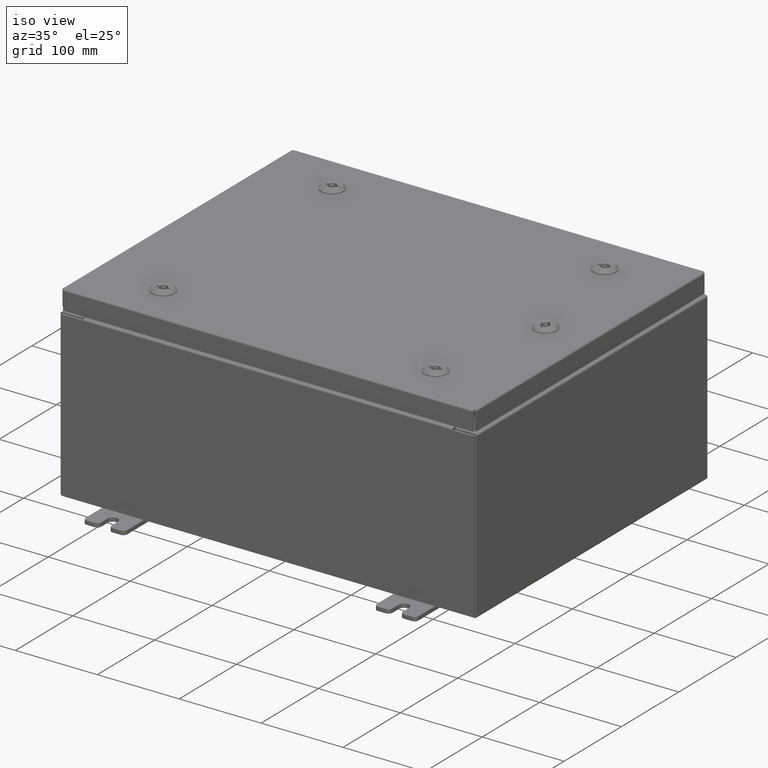
[diagram: clean part render]
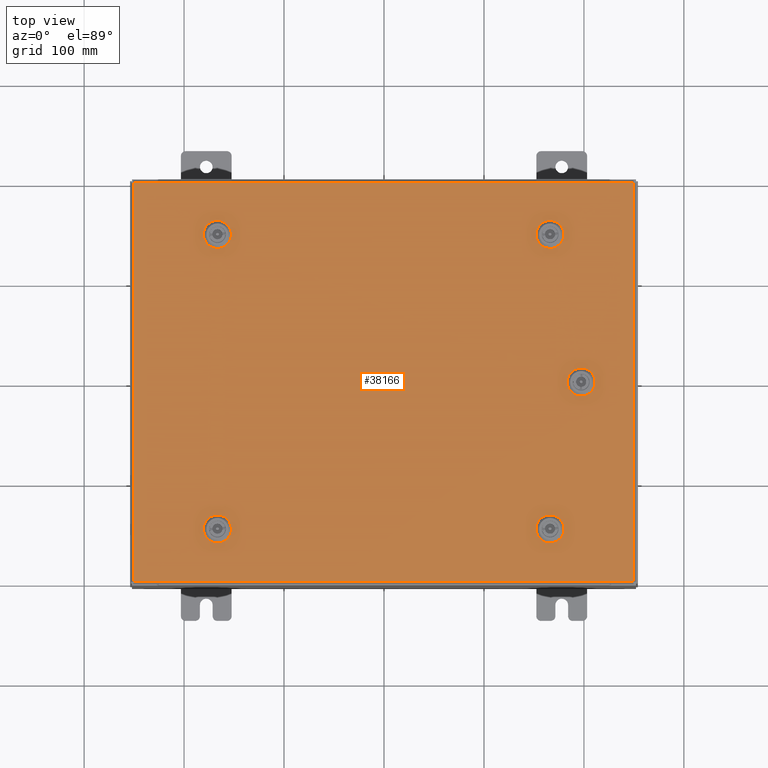
[diagram: tour spotlight — one face highlighted and labeled with its STEP entity id]
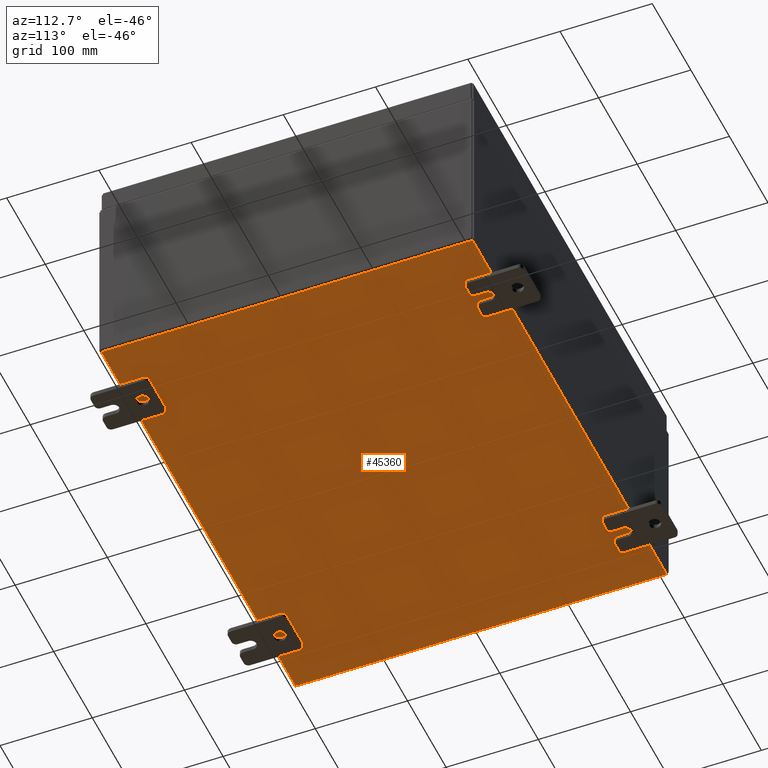
[diagram: tour spotlight — one face highlighted and labeled with its STEP entity id]
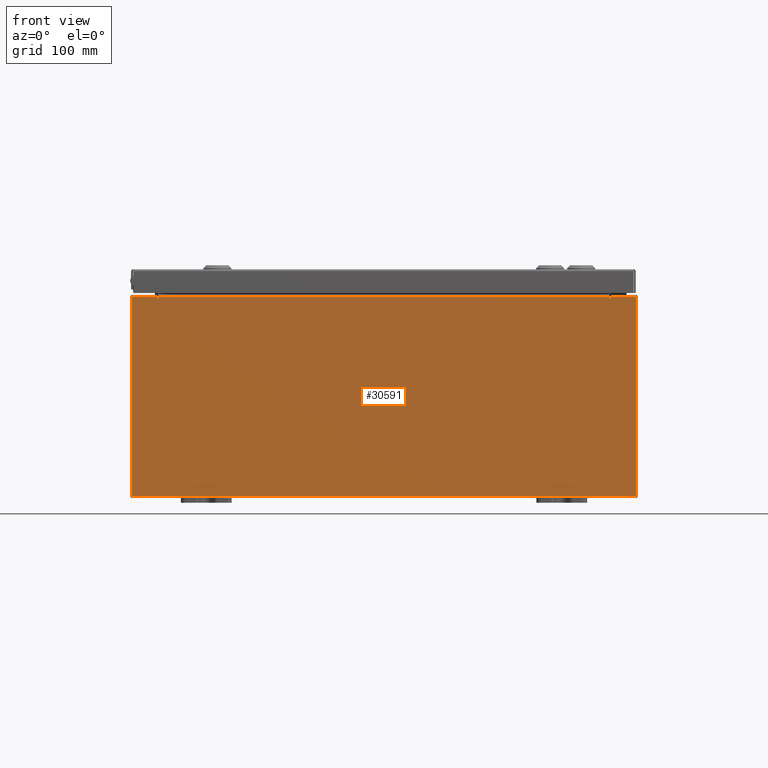
[diagram: tour spotlight — one face highlighted and labeled with its STEP entity id]
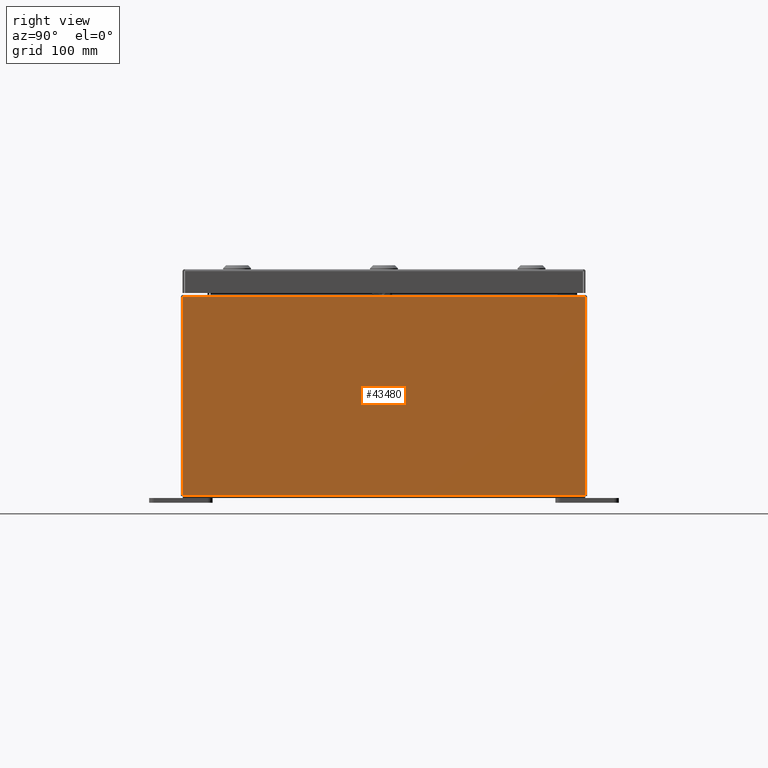
[diagram: tour spotlight — one face highlighted and labeled with its STEP entity id]
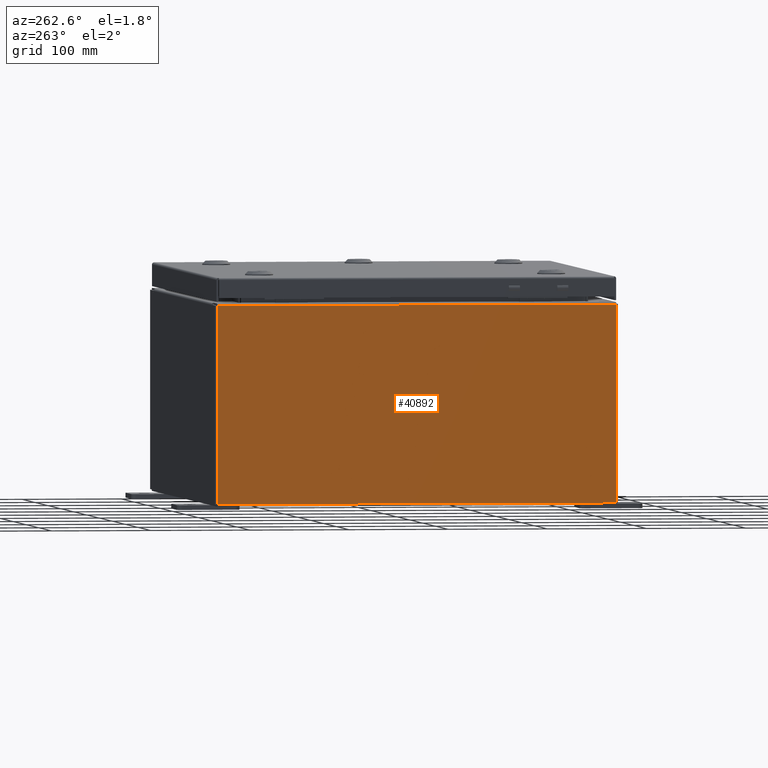
[diagram: tour spotlight — one face highlighted and labeled with its STEP entity id]
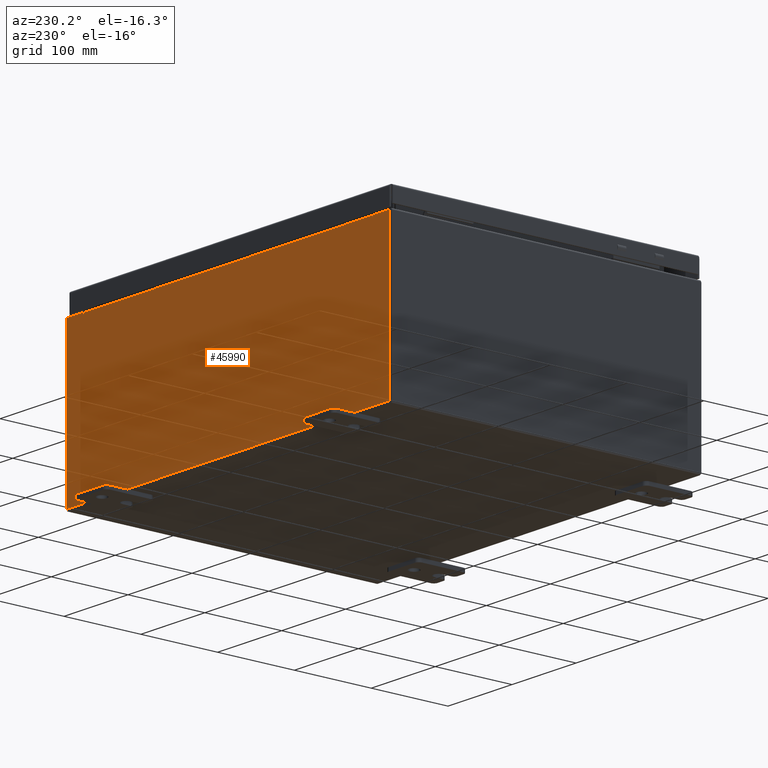
[diagram: tour spotlight — one face highlighted and labeled with its STEP entity id]
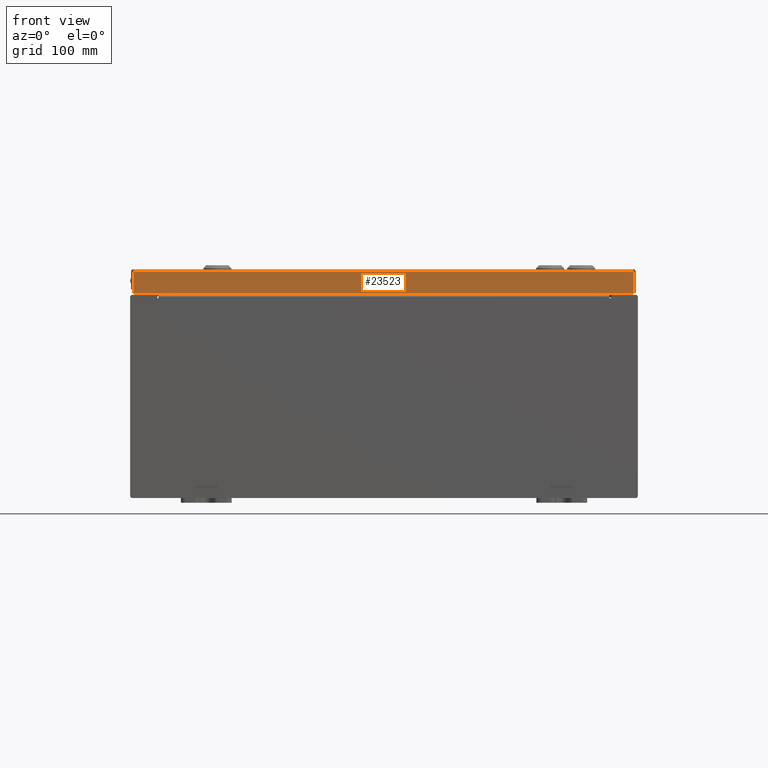
[diagram: tour spotlight — one face highlighted and labeled with its STEP entity id]
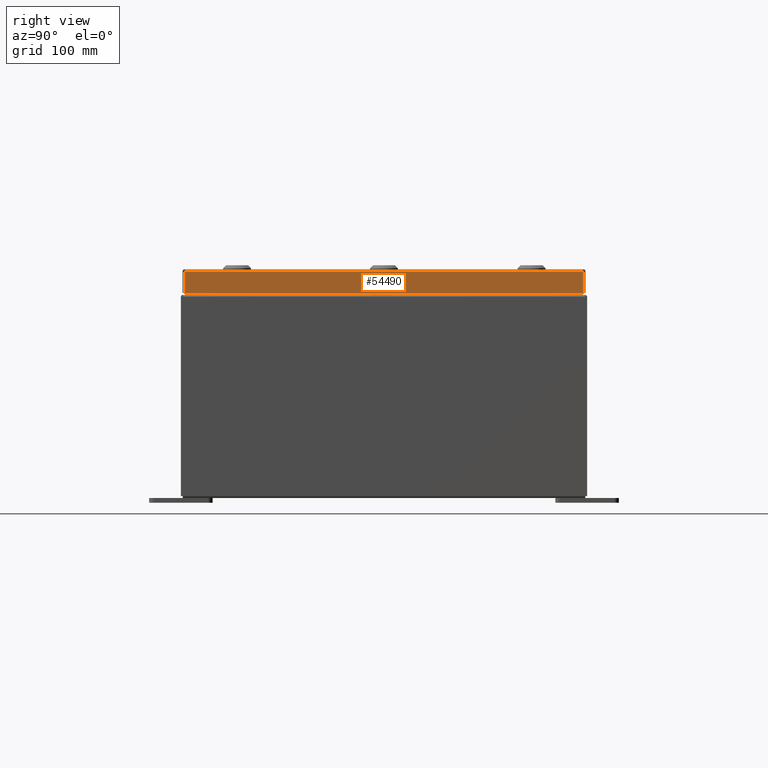
[diagram: tour spotlight — one face highlighted and labeled with its STEP entity id]
A machine part: a face-by-face anatomy tour. The part has 4592 B-rep faces; the first image is the clean iso view, then the 8 largest visible faces are spotlighted one at a time (largest first), each with its STEP entity span.

Face 1 — top view, entity #38166. In plain terms, the highlighted planar face has unit normal (0, 0, -1).
Definition (entity closure, byte-faithful):
#41 = ORIENTED_EDGE ( 'NONE', *, *, #56966, .F. ) ;
#214 = VERTEX_POINT ( 'NONE', #59776 ) ;
#232 = ORIENTED_EDGE ( 'NONE', *, *, #9797, .F. ) ;
#301 = EDGE_CURVE ( 'NONE', #19980, #27138, #12074, .T. ) ;
#329 = ORIENTED_EDGE ( 'NONE', *, *, #59008, .F. ) ;
#487 = CARTESIAN_POINT ( 'NONE',  ( 6.761952375267864700, 5.392799999999995800, -2.731847993664263300E-014 ) ) ;
#989 = ORIENTED_EDGE ( 'NONE', *, *, #22856, .F. ) ;
#1016 = DIRECTION ( 'NONE',  ( 0.0000000000000000000, 1.000000000000000000, 6.982962677686269100E-015 ) ) ;
#1695 = CARTESIAN_POINT ( 'NONE',  ( -6.363047624732097100, -5.392799999999999400, -4.698778549102532700E-014 ) ) ;
#1862 = CARTESIAN_POINT ( 'NONE',  ( 7.787800000000009600, 1.529834876451987200E-014, 0.0000000000000000000 ) ) ;
#1905 = DIRECTION ( 'NONE',  ( 0.0000000000000000000, 0.0000000000000000000, 1.000000000000000000 ) ) ;
#2277 = EDGE_CURVE ( 'NONE', #59607, #62866, #50705, .T. ) ;
#2642 = LINE ( 'NONE', #7562, #15547 ) ;
#3067 = CIRCLE ( 'NONE', #47859, 0.4424999999999983400 ) ;
#3143 = LINE ( 'NONE', #32127, #40307 ) ;
#3180 = AXIS2_PLACEMENT_3D ( 'NONE', #35596, #6526, #40455 ) ;
#3420 = CIRCLE ( 'NONE', #39979, 0.4424999999999972800 ) ;
#3434 = CARTESIAN_POINT ( 'NONE',  ( -6.761952375267867400, -5.392799999999998500, -4.698778549102532700E-014 ) ) ;
#3988 = DIRECTION ( 'NONE',  ( -1.000000000000000000, 0.0000000000000000000, 6.982962677686261200E-015 ) ) ;
#4093 = EDGE_CURVE ( 'NONE', #8028, #19543, #42239, .T. ) ;
#4734 = EDGE_LOOP ( 'NONE', ( #54063, #232, #4747, #329, #49642 ) ) ;
#4747 = ORIENTED_EDGE ( 'NONE', *, *, #26307, .F. ) ;
#4865 = CARTESIAN_POINT ( 'NONE',  ( 6.562499999999981300, 5.787799999999993600, -2.622574073917692700E-014 ) ) ;
#5457 = CARTESIAN_POINT ( 'NONE',  ( -6.363047624732097100, -5.392799999999999400, -4.698778549102532700E-014 ) ) ;
#5470 = ORIENTED_EDGE ( 'NONE', *, *, #30597, .F. ) ;
#5480 = CARTESIAN_POINT ( 'NONE',  ( 7.004999999999979500, -5.787799999999993600, -1.985756216190365100E-014 ) ) ;
#5604 = VERTEX_POINT ( 'NONE', #16082 ) ;
#5615 = CARTESIAN_POINT ( 'NONE',  ( 6.562499999999981300, -5.787799999999993600, -2.294752314677981200E-014 ) ) ;
#6109 = EDGE_LOOP ( 'NONE', ( #60690, #33008, #26326, #39586 ) ) ;
#6456 = FACE_BOUND ( 'NONE', #14028, .T. ) ;
#6526 = DIRECTION ( 'NONE',  ( -0.0000000000000000000, -6.982962677686266700E-015, 1.000000000000000000 ) ) ;
#6732 = DIRECTION ( 'NONE',  ( 1.000000000000000000, 0.0000000000000000000, 0.0000000000000000000 ) ) ;
#6959 = AXIS2_PLACEMENT_3D ( 'NONE', #25152, #59120, #30053 ) ;
#7226 = AXIS2_PLACEMENT_3D ( 'NONE', #1862, #35796, #6732 ) ;
#7562 = CARTESIAN_POINT ( 'NONE',  ( 6.363047624732090000, 6.182799999999985200, -2.513300154171122100E-014 ) ) ;
#8003 = FACE_BOUND ( 'NONE', #4734, .T. ) ;
#8028 = VERTEX_POINT ( 'NONE', #3434 ) ;
#8427 = VECTOR ( 'NONE', #49159, 39.37007874015748100 ) ;
#8951 = LINE ( 'NONE', #47119, #59080 ) ;
#9155 = CARTESIAN_POINT ( 'NONE',  ( 6.562499999999981300, 5.787799999999993600, -2.622574073917692700E-014 ) ) ;
#9273 = AXIS2_PLACEMENT_3D ( 'NONE', #17933, #20695, #20280 ) ;
#9718 = DIRECTION ( 'NONE',  ( -1.000000000000000000, 0.0000000000000000000, 6.982962677686261200E-015 ) ) ;
#9797 = EDGE_CURVE ( 'NONE', #44037, #214, #20135, .T. ) ;
#10471 = DIRECTION ( 'NONE',  ( 1.000000000000000000, 0.0000000000000000000, 6.982962677686261200E-015 ) ) ;
#10481 = CARTESIAN_POINT ( 'NONE',  ( 6.562499999999981300, -5.787799999999993600, -2.294752314677981200E-014 ) ) ;
#10593 = LINE ( 'NONE', #39728, #46310 ) ;
#10681 = AXIS2_PLACEMENT_3D ( 'NONE', #14393, #24370, #58339 ) ;
#11051 = CARTESIAN_POINT ( 'NONE',  ( -6.363047624732097100, 5.392799999999997600, 0.0000000000000000000 ) ) ;
#12049 = EDGE_CURVE ( 'NONE', #5604, #42252, #46591, .T. ) ;
#12063 = CARTESIAN_POINT ( 'NONE',  ( 6.761952375267863000, 6.182799999999990500, 0.0000000000000000000 ) ) ;
#12074 = CIRCLE ( 'NONE', #9273, 0.4424999999999972800 ) ;
#12478 = LINE ( 'NONE', #19941, #36784 ) ;
#12613 = ORIENTED_EDGE ( 'NONE', *, *, #27797, .F. ) ;
#13495 = VECTOR ( 'NONE', #25335, 39.37007874015748100 ) ;
#13633 = VECTOR ( 'NONE', #22834, 39.37007874015748100 ) ;
#14028 = EDGE_LOOP ( 'NONE', ( #42042, #12613, #51746, #16933, #989 ) ) ;
#14027 = VERTEX_POINT ( 'NONE', #1695 ) ;
#14037 = DIRECTION ( 'NONE',  ( -1.000000000000000000, 0.0000000000000000000, 6.982962677686260400E-015 ) ) ;
#14111 = EDGE_CURVE ( 'NONE', #214, #34263, #20627, .T. ) ;
#14393 = CARTESIAN_POINT ( 'NONE',  ( 0.0000000000000000000, 0.0000000000000000000, 0.0000000000000000000 ) ) ;
#15102 = EDGE_CURVE ( 'NONE', #42252, #23728, #33509, .T. ) ;
#15392 = DIRECTION ( 'NONE',  ( 1.000000000000000000, 0.0000000000000000000, 6.982962677686261200E-015 ) ) ;
#15547 = VECTOR ( 'NONE', #41471, 39.37007874015748100 ) ;
#16082 = CARTESIAN_POINT ( 'NONE',  ( 9.849800000000001900, 7.849800000000001000, -1.092739197465705300E-015 ) ) ;
#16100 = ORIENTED_EDGE ( 'NONE', *, *, #15102, .T. ) ;
#16381 = CARTESIAN_POINT ( 'NONE',  ( 8.182800000000003800, 0.1994523752679009100, 0.0000000000000000000 ) ) ;
#16892 = VERTEX_POINT ( 'NONE', #31122 ) ;
#16933 = ORIENTED_EDGE ( 'NONE', *, *, #2277, .F. ) ;
#17933 = CARTESIAN_POINT ( 'NONE',  ( -6.562499999999982200, 5.787799999999993600, 0.0000000000000000000 ) ) ;
#18377 = AXIS2_PLACEMENT_3D ( 'NONE', #53631, #24540, #58507 ) ;
#19034 = EDGE_CURVE ( 'NONE', #23728, #20282, #8951, .T. ) ;
#19108 = VECTOR ( 'NONE', #55384, 39.37007874015748100 ) ;
#19235 = VECTOR ( 'NONE', #50840, 39.37007874015748100 ) ;
#19349 = FACE_BOUND ( 'NONE', #6109, .T. ) ;
#19543 = VERTEX_POINT ( 'NONE', #23396 ) ;
#19869 = EDGE_CURVE ( 'NONE', #23520, #53254, #24819, .T. ) ;
#19941 = CARTESIAN_POINT ( 'NONE',  ( 7.392800000000016200, 0.1994523752679053800, 0.0000000000000000000 ) ) ;
#19980 = VERTEX_POINT ( 'NONE', #56264 ) ;
#20027 = DIRECTION ( 'NONE',  ( 0.0000000000000000000, 0.0000000000000000000, 1.000000000000000000 ) ) ;
#20052 = VERTEX_POINT ( 'NONE', #51786 ) ;
#20135 = CIRCLE ( 'NONE', #61639, 0.4424999999999983400 ) ;
#20280 = DIRECTION ( 'NONE',  ( 1.000000000000000000, 0.0000000000000000000, 0.0000000000000000000 ) ) ;
#20282 = VERTEX_POINT ( 'NONE', #38162 ) ;
#20627 = LINE ( 'NONE', #26091, #19108 ) ;
#20695 = DIRECTION ( 'NONE',  ( 0.0000000000000000000, 0.0000000000000000000, 1.000000000000000000 ) ) ;
#20857 = CARTESIAN_POINT ( 'NONE',  ( -6.761952375267863900, 6.182799999999990500, 0.0000000000000000000 ) ) ;
#21290 = CARTESIAN_POINT ( 'NONE',  ( 6.761952375267863000, -6.182799999999990500, -2.513300154171122100E-014 ) ) ;
#21880 = EDGE_CURVE ( 'NONE', #57825, #28891, #2642, .T. ) ;
#21966 = CIRCLE ( 'NONE', #44480, 0.4424999999999983400 ) ;
#22834 = DIRECTION ( 'NONE',  ( -1.000000000000000000, 1.369674334534793800E-014, 0.0000000000000000000 ) ) ;
#22856 = EDGE_CURVE ( 'NONE', #28891, #59607, #25329, .T. ) ;
#22998 = CARTESIAN_POINT ( 'NONE',  ( -6.363047624732090800, -6.182799999999987000, -5.245148147835385400E-014 ) ) ;
#23008 = ORIENTED_EDGE ( 'NONE', *, *, #45121, .F. ) ;
#23168 = CARTESIAN_POINT ( 'NONE',  ( -6.761952375267867400, 5.392799999999995800, 0.0000000000000000000 ) ) ;
#23202 = EDGE_CURVE ( 'NONE', #34263, #20052, #54950, .T. ) ;
#23396 = CARTESIAN_POINT ( 'NONE',  ( -6.761952375267863900, -6.182799999999993200, 0.0000000000000000000 ) ) ;
#23520 = VERTEX_POINT ( 'NONE', #16381 ) ;
#23728 = VERTEX_POINT ( 'NONE', #51515 ) ;
#23887 = VERTEX_POINT ( 'NONE', #47456 ) ;
#24370 = DIRECTION ( 'NONE',  ( 0.0000000000000000000, 0.0000000000000000000, -1.000000000000000000 ) ) ;
#24409 = VERTEX_POINT ( 'NONE', #22998 ) ;
#24540 = DIRECTION ( 'NONE',  ( 0.0000000000000000000, 0.0000000000000000000, 1.000000000000000000 ) ) ;
#24787 = ORIENTED_EDGE ( 'NONE', *, *, #59449, .F. ) ;
#24819 = CIRCLE ( 'NONE', #7226, 0.4424999999999972800 ) ;
#25091 = ORIENTED_EDGE ( 'NONE', *, *, #12049, .T. ) ;
#25152 = CARTESIAN_POINT ( 'NONE',  ( -6.562499999999982200, -5.787799999999995400, -4.917326388595673900E-014 ) ) ;
#25329 = CIRCLE ( 'NONE', #47228, 0.4424999999999972800 ) ;
#25335 = DIRECTION ( 'NONE',  ( 1.000000000000000000, -2.739348669069625000E-015, -6.982962677686286400E-015 ) ) ;
#25358 = EDGE_LOOP ( 'NONE', ( #29591, #40314, #25091, #16100 ) ) ;
#26091 = CARTESIAN_POINT ( 'NONE',  ( 6.363047624732097100, -5.392799999999997600, -2.185478394931410600E-014 ) ) ;
#26307 = EDGE_CURVE ( 'NONE', #29758, #44037, #37277, .T. ) ;
#26326 = ORIENTED_EDGE ( 'NONE', *, *, #51487, .F. ) ;
#27138 = VERTEX_POINT ( 'NONE', #30438 ) ;
#27166 = CARTESIAN_POINT ( 'NONE',  ( 6.562499999999981300, -5.787799999999993600, -2.294752314677981200E-014 ) ) ;
#27797 = EDGE_CURVE ( 'NONE', #53241, #57825, #21966, .T. ) ;
#27806 = DIRECTION ( 'NONE',  ( 1.000000000000000000, -0.0000000000000000000, -0.0000000000000000000 ) ) ;
#28238 = ORIENTED_EDGE ( 'NONE', *, *, #44881, .F. ) ;
#28849 = ORIENTED_EDGE ( 'NONE', *, *, #43816, .F. ) ;
#28891 = VERTEX_POINT ( 'NONE', #60740 ) ;
#29591 = ORIENTED_EDGE ( 'NONE', *, *, #19034, .T. ) ;
#29758 = VERTEX_POINT ( 'NONE', #21290 ) ;
#29777 = ORIENTED_EDGE ( 'NONE', *, *, #301, .F. ) ;
#30053 = DIRECTION ( 'NONE',  ( 0.0000000000000000000, 1.000000000000000000, 6.982962677686270700E-015 ) ) ;
#30106 = DIRECTION ( 'NONE',  ( -0.0000000000000000000, -6.982962677686266700E-015, 1.000000000000000000 ) ) ;
#30438 = CARTESIAN_POINT ( 'NONE',  ( -6.119999999999985000, 5.787799999999993600, 0.0000000000000000000 ) ) ;
#30597 = EDGE_CURVE ( 'NONE', #60788, #19980, #41649, .T. ) ;
#30978 = CARTESIAN_POINT ( 'NONE',  ( 7.787800000000009600, 1.529834876451987200E-014, 0.0000000000000000000 ) ) ;
#31122 = CARTESIAN_POINT ( 'NONE',  ( 8.182800000000009200, -0.1994523752678676000, 0.0000000000000000000 ) ) ;
#31518 = CARTESIAN_POINT ( 'NONE',  ( -9.849799999999996600, 7.849800000000001000, 0.0000000000000000000 ) ) ;
#31844 = CARTESIAN_POINT ( 'NONE',  ( 6.363047624732097100, 5.392799999999997600, -2.513300154171122100E-014 ) ) ;
#32050 = DIRECTION ( 'NONE',  ( 1.000000000000000000, 0.0000000000000000000, 6.982962677686260400E-015 ) ) ;
#32127 = CARTESIAN_POINT ( 'NONE',  ( 9.849800000000001900, -7.849799999999999200, 0.0000000000000000000 ) ) ;
#32299 = FACE_BOUND ( 'NONE', #55607, .T. ) ;
#32408 = CARTESIAN_POINT ( 'NONE',  ( 6.363047624732097100, -5.392799999999997600, -2.185478394931410600E-014 ) ) ;
#32453 = CIRCLE ( 'NONE', #42985, 0.4424999999999983400 ) ;
#32730 = LINE ( 'NONE', #5457, #8427 ) ;
#32933 = EDGE_CURVE ( 'NONE', #52476, #16892, #32453, .T. ) ;
#33008 = ORIENTED_EDGE ( 'NONE', *, *, #32933, .F. ) ;
#33060 = DIRECTION ( 'NONE',  ( 6.982962677686266700E-015, -0.0000000000000000000, 1.000000000000000000 ) ) ;
#33288 = DIRECTION ( 'NONE',  ( -1.000000000000000000, -0.0000000000000000000, -0.0000000000000000000 ) ) ;
#33509 = LINE ( 'NONE', #31518, #57793 ) ;
#34263 = VERTEX_POINT ( 'NONE', #32408 ) ;
#34594 = DIRECTION ( 'NONE',  ( -8.218046007208770500E-015, -1.000000000000000000, 0.0000000000000000000 ) ) ;
#35596 = CARTESIAN_POINT ( 'NONE',  ( -6.562499999999982200, -5.787799999999995400, -4.917326388595673900E-014 ) ) ;
#35639 = CIRCLE ( 'NONE', #18377, 0.4424999999999972800 ) ;
#35796 = DIRECTION ( 'NONE',  ( 0.0000000000000000000, 0.0000000000000000000, 1.000000000000000000 ) ) ;
#35840 = DIRECTION ( 'NONE',  ( 1.000000000000000000, 0.0000000000000000000, 0.0000000000000000000 ) ) ;
#36768 = CARTESIAN_POINT ( 'NONE',  ( 7.392800000000012700, -0.1994523752678671000, 0.0000000000000000000 ) ) ;
#36784 = VECTOR ( 'NONE', #34594, 39.37007874015748100 ) ;
#36987 = DIRECTION ( 'NONE',  ( 0.0000000000000000000, 1.000000000000000000, 0.0000000000000000000 ) ) ;
#37277 = CIRCLE ( 'NONE', #46087, 0.4424999999999983400 ) ;
#37461 = DIRECTION ( 'NONE',  ( -8.218046007208852600E-015, 1.000000000000000000, -0.0000000000000000000 ) ) ;
#38162 = CARTESIAN_POINT ( 'NONE',  ( 9.849800000000001900, -7.849799999999999200, 0.0000000000000000000 ) ) ;
#38166 = ADVANCED_FACE ( 'NONE', ( #19349, #8003, #32299, #6456, #56592, #43613 ), #43653, .F. ) ;
#38357 = VECTOR ( 'NONE', #37461, 39.37007874015748100 ) ;
#38446 = EDGE_CURVE ( 'NONE', #24409, #23887, #3420, .T. ) ;
#38479 = CARTESIAN_POINT ( 'NONE',  ( 7.004999999999979500, 5.787799999999993600, -2.931570172405308400E-014 ) ) ;
#38783 = DIRECTION ( 'NONE',  ( 6.982962677686266700E-015, -0.0000000000000000000, 1.000000000000000000 ) ) ;
#39133 = ORIENTED_EDGE ( 'NONE', *, *, #4093, .F. ) ;
#39547 = DIRECTION ( 'NONE',  ( -6.982962677686266700E-015, -6.982962677686266700E-015, 1.000000000000000000 ) ) ;
#39586 = ORIENTED_EDGE ( 'NONE', *, *, #19869, .F. ) ;
#39728 = CARTESIAN_POINT ( 'NONE',  ( 6.363047624732090000, -6.182799999999985200, -2.731847993664263300E-014 ) ) ;
#39979 = AXIS2_PLACEMENT_3D ( 'NONE', #59177, #30106, #1016 ) ;
#40307 = VECTOR ( 'NONE', #36987, 39.37007874015748100 ) ;
#40314 = ORIENTED_EDGE ( 'NONE', *, *, #57271, .T. ) ;
#40455 = DIRECTION ( 'NONE',  ( 0.0000000000000000000, 1.000000000000000000, 6.982962677686269100E-015 ) ) ;
#41084 = CIRCLE ( 'NONE', #55623, 0.4424999999999983400 ) ;
#41471 = DIRECTION ( 'NONE',  ( -1.000000000000000000, -1.369674334534793800E-014, 6.982962677686269100E-015 ) ) ;
#41649 = LINE ( 'NONE', #11051, #43161 ) ;
#42042 = ORIENTED_EDGE ( 'NONE', *, *, #21880, .F. ) ;
#42239 = CIRCLE ( 'NONE', #6959, 0.4424999999999983400 ) ;
#42252 = VERTEX_POINT ( 'NONE', #47885 ) ;
#42677 = ORIENTED_EDGE ( 'NONE', *, *, #38446, .F. ) ;
#42985 = AXIS2_PLACEMENT_3D ( 'NONE', #30978, #1905, #35840 ) ;
#43088 = DIRECTION ( 'NONE',  ( 6.982962677686266700E-015, -0.0000000000000000000, 1.000000000000000000 ) ) ;
#43161 = VECTOR ( 'NONE', #45016, 39.37007874015748100 ) ;
#43613 = FACE_OUTER_BOUND ( 'NONE', #25358, .T. ) ;
#43653 = PLANE ( 'NONE',  #10681 ) ;
#43816 = EDGE_CURVE ( 'NONE', #14027, #8028, #32730, .T. ) ;
#44037 = VERTEX_POINT ( 'NONE', #5480 ) ;
#44430 = DIRECTION ( 'NONE',  ( -6.982962677686266700E-015, -6.982962677686266700E-015, 1.000000000000000000 ) ) ;
#44480 = AXIS2_PLACEMENT_3D ( 'NONE', #4865, #38783, #9718 ) ;
#44484 = EDGE_CURVE ( 'NONE', #62866, #53241, #3067, .T. ) ;
#44595 = EDGE_LOOP ( 'NONE', ( #5470, #41, #23008, #24787, #29777 ) ) ;
#44694 = CARTESIAN_POINT ( 'NONE',  ( -6.363047624732090800, 6.182799999999985200, 0.0000000000000000000 ) ) ;
#44881 = EDGE_CURVE ( 'NONE', #23887, #14027, #45533, .T. ) ;
#45016 = DIRECTION ( 'NONE',  ( 1.000000000000000000, 2.739348669069610000E-015, -0.0000000000000000000 ) ) ;
#45062 = LINE ( 'NONE', #55528, #19235 ) ;
#45121 = EDGE_CURVE ( 'NONE', #45483, #52185, #52374, .T. ) ;
#45483 = VERTEX_POINT ( 'NONE', #44694 ) ;
#45533 = CIRCLE ( 'NONE', #3180, 0.4424999999999972800 ) ;
#45945 = DIRECTION ( 'NONE',  ( 0.0000000000000000000, -1.000000000000000000, 0.0000000000000000000 ) ) ;
#46087 = AXIS2_PLACEMENT_3D ( 'NONE', #10481, #44430, #15392 ) ;
#46310 = VECTOR ( 'NONE', #49504, 39.37007874015748100 ) ;
#46591 = LINE ( 'NONE', #62346, #57972 ) ;
#47032 = CARTESIAN_POINT ( 'NONE',  ( 8.182800000000003800, 0.1994523752679009100, 0.0000000000000000000 ) ) ;
#47059 = CARTESIAN_POINT ( 'NONE',  ( -6.363047624732090800, 6.182799999999985200, 0.0000000000000000000 ) ) ;
#47119 = CARTESIAN_POINT ( 'NONE',  ( -9.849799999999996600, -7.849799999999999200, 0.0000000000000000000 ) ) ;
#47228 = AXIS2_PLACEMENT_3D ( 'NONE', #9155, #43088, #14037 ) ;
#47456 = CARTESIAN_POINT ( 'NONE',  ( -6.119999999999985000, -5.787799999999995400, -4.917326388595673900E-014 ) ) ;
#47859 = AXIS2_PLACEMENT_3D ( 'NONE', #62135, #33060, #3988 ) ;
#47885 = CARTESIAN_POINT ( 'NONE',  ( -9.849799999999996600, 7.849800000000001000, 0.0000000000000000000 ) ) ;
#48363 = ORIENTED_EDGE ( 'NONE', *, *, #52861, .F. ) ;
#49098 = CARTESIAN_POINT ( 'NONE',  ( -6.562499999999982200, 5.787799999999993600, 0.0000000000000000000 ) ) ;
#49159 = DIRECTION ( 'NONE',  ( -1.000000000000000000, 2.739348669069610000E-015, 1.946424297521510000E-029 ) ) ;
#49504 = DIRECTION ( 'NONE',  ( 1.000000000000000000, -1.369674334534793800E-014, 6.982962677686171300E-015 ) ) ;
#49642 = ORIENTED_EDGE ( 'NONE', *, *, #23202, .F. ) ;
#50390 = CARTESIAN_POINT ( 'NONE',  ( 6.363047624732097100, 5.392799999999997600, -2.513300154171122100E-014 ) ) ;
#50552 = EDGE_CURVE ( 'NONE', #16892, #23520, #52798, .T. ) ;
#50705 = LINE ( 'NONE', #50390, #13495 ) ;
#50840 = DIRECTION ( 'NONE',  ( 1.000000000000000000, 1.369674334534793800E-014, 9.732121487607470400E-029 ) ) ;
#51487 = EDGE_CURVE ( 'NONE', #53254, #52476, #12478, .T. ) ;
#51515 = CARTESIAN_POINT ( 'NONE',  ( -9.849799999999996600, -7.849799999999999200, 0.0000000000000000000 ) ) ;
#51746 = ORIENTED_EDGE ( 'NONE', *, *, #44484, .F. ) ;
#51786 = CARTESIAN_POINT ( 'NONE',  ( 6.363047624732090000, -6.182799999999985200, -2.731847993664263300E-014 ) ) ;
#52185 = VERTEX_POINT ( 'NONE', #20857 ) ;
#52374 = LINE ( 'NONE', #47059, #13633 ) ;
#52476 = VERTEX_POINT ( 'NONE', #36768 ) ;
#52798 = LINE ( 'NONE', #47032, #38357 ) ;
#52861 = EDGE_CURVE ( 'NONE', #19543, #24409, #45062, .T. ) ;
#52922 = CARTESIAN_POINT ( 'NONE',  ( 7.392800000000016200, 0.1994523752679053200, 0.0000000000000000000 ) ) ;
#53241 = VERTEX_POINT ( 'NONE', #38479 ) ;
#53254 = VERTEX_POINT ( 'NONE', #52922 ) ;
#53631 = CARTESIAN_POINT ( 'NONE',  ( -6.562499999999982200, 5.787799999999993600, 0.0000000000000000000 ) ) ;
#54004 = DIRECTION ( 'NONE',  ( 1.000000000000000000, 0.0000000000000000000, 0.0000000000000000000 ) ) ;
#54063 = ORIENTED_EDGE ( 'NONE', *, *, #14111, .F. ) ;
#54950 = CIRCLE ( 'NONE', #62286, 0.4424999999999972800 ) ;
#55384 = DIRECTION ( 'NONE',  ( -1.000000000000000000, -2.739348669069625000E-015, -6.982962677686314800E-015 ) ) ;
#55528 = CARTESIAN_POINT ( 'NONE',  ( -6.363047624732090800, -6.182799999999987000, -5.245148147835385400E-014 ) ) ;
#55607 = EDGE_LOOP ( 'NONE', ( #48363, #39133, #28849, #28238, #42677 ) ) ;
#55623 = AXIS2_PLACEMENT_3D ( 'NONE', #49098, #20027, #54004 ) ;
#56264 = CARTESIAN_POINT ( 'NONE',  ( -6.363047624732097100, 5.392799999999997600, 0.0000000000000000000 ) ) ;
#56592 = FACE_BOUND ( 'NONE', #44595, .T. ) ;
#56966 = EDGE_CURVE ( 'NONE', #52185, #60788, #41084, .T. ) ;
#57271 = EDGE_CURVE ( 'NONE', #20282, #5604, #3143, .T. ) ;
#57793 = VECTOR ( 'NONE', #45945, 39.37007874015748100 ) ;
#57825 = VERTEX_POINT ( 'NONE', #12063 ) ;
#57972 = VECTOR ( 'NONE', #33288, 39.37007874015748100 ) ;
#58339 = DIRECTION ( 'NONE',  ( -1.000000000000000000, 0.0000000000000000000, -0.0000000000000000000 ) ) ;
#58507 = DIRECTION ( 'NONE',  ( 1.000000000000000000, 0.0000000000000000000, 0.0000000000000000000 ) ) ;
#59008 = EDGE_CURVE ( 'NONE', #20052, #29758, #10593, .T. ) ;
#59080 = VECTOR ( 'NONE', #27806, 39.37007874015748100 ) ;
#59120 = DIRECTION ( 'NONE',  ( -0.0000000000000000000, -6.982962677686266700E-015, 1.000000000000000000 ) ) ;
#59177 = CARTESIAN_POINT ( 'NONE',  ( -6.562499999999982200, -5.787799999999995400, -4.917326388595673900E-014 ) ) ;
#59449 = EDGE_CURVE ( 'NONE', #27138, #45483, #35639, .T. ) ;
#59607 = VERTEX_POINT ( 'NONE', #31844 ) ;
#59776 = CARTESIAN_POINT ( 'NONE',  ( 6.761952375267864700, -5.392799999999995800, 0.0000000000000000000 ) ) ;
#60690 = ORIENTED_EDGE ( 'NONE', *, *, #50552, .F. ) ;
#60740 = CARTESIAN_POINT ( 'NONE',  ( 6.363047624732090000, 6.182799999999985200, -2.513300154171122100E-014 ) ) ;
#60788 = VERTEX_POINT ( 'NONE', #23168 ) ;
#61133 = DIRECTION ( 'NONE',  ( -6.982962677686266700E-015, -6.982962677686266700E-015, 1.000000000000000000 ) ) ;
#61639 = AXIS2_PLACEMENT_3D ( 'NONE', #5615, #39547, #10471 ) ;
#62135 = CARTESIAN_POINT ( 'NONE',  ( 6.562499999999981300, 5.787799999999993600, -2.622574073917692700E-014 ) ) ;
#62286 = AXIS2_PLACEMENT_3D ( 'NONE', #27166, #61133, #32050 ) ;
#62346 = CARTESIAN_POINT ( 'NONE',  ( 9.849800000000001900, 7.849800000000001000, -1.092739197465705300E-015 ) ) ;
#62866 = VERTEX_POINT ( 'NONE', #487 ) ;

Face 2 — auxiliary view, entity #45360. In plain terms, the highlighted planar face has unit normal (0, 0, -1).
Definition (entity closure, byte-faithful):
#1118 = ORIENTED_EDGE ( 'NONE', *, *, #47487, .F. ) ;
#5570 = EDGE_CURVE ( 'NONE', #38168, #26873, #8761, .T. ) ;
#6249 = ORIENTED_EDGE ( 'NONE', *, *, #60902, .T. ) ;
#8761 = LINE ( 'NONE', #44926, #57375 ) ;
#9173 = EDGE_CURVE ( 'NONE', #38168, #17759, #9538, .T. ) ;
#9499 = CARTESIAN_POINT ( 'NONE',  ( 9.912300000000000100, -7.925300000000000000, -0.07469999999999998900 ) ) ;
#9538 = LINE ( 'NONE', #30603, #59688 ) ;
#10965 = DIRECTION ( 'NONE',  ( -0.0000000000000000000, -1.000000000000000000, -0.0000000000000000000 ) ) ;
#11822 = DIRECTION ( 'NONE',  ( 1.000000000000000000, 0.0000000000000000000, 0.0000000000000000000 ) ) ;
#14624 = CARTESIAN_POINT ( 'NONE',  ( 9.912300000000000100, 7.925300000000000000, -0.07469999999999996100 ) ) ;
#14756 = DIRECTION ( 'NONE',  ( -1.000000000000000000, 0.0000000000000000000, -0.0000000000000000000 ) ) ;
#17309 = ORIENTED_EDGE ( 'NONE', *, *, #9173, .F. ) ;
#17759 = VERTEX_POINT ( 'NONE', #61726 ) ;
#18993 = PLANE ( 'NONE',  #54020 ) ;
#19414 = CARTESIAN_POINT ( 'NONE',  ( 0.0000000000000000000, 0.0000000000000000000, -0.07469999999999998900 ) ) ;
#20359 = VECTOR ( 'NONE', #34005, 39.37007874015748100 ) ;
#21367 = CARTESIAN_POINT ( 'NONE',  ( -10.00000000000000000, -7.925300000000000000, -0.07469999999999998900 ) ) ;
#25702 = DIRECTION ( 'NONE',  ( -1.000000000000000000, -0.0000000000000000000, -0.0000000000000000000 ) ) ;
#26873 = VERTEX_POINT ( 'NONE', #9499 ) ;
#29104 = CARTESIAN_POINT ( 'NONE',  ( -9.912300000000000100, -7.925300000000000000, -0.07469999999999996100 ) ) ;
#30603 = CARTESIAN_POINT ( 'NONE',  ( -10.00000000000000000, 7.925300000000000000, -0.07469999999999998900 ) ) ;
#34005 = DIRECTION ( 'NONE',  ( -0.0000000000000000000, 1.000000000000000000, -0.0000000000000000000 ) ) ;
#36037 = ORIENTED_EDGE ( 'NONE', *, *, #5570, .T. ) ;
#38168 = VERTEX_POINT ( 'NONE', #14624 ) ;
#42935 = CARTESIAN_POINT ( 'NONE',  ( -9.912300000000000100, -7.925300000000000000, -0.07469999999999996100 ) ) ;
#43083 = LINE ( 'NONE', #21367, #54533 ) ;
#43792 = DIRECTION ( 'NONE',  ( 0.0000000000000000000, 0.0000000000000000000, -1.000000000000000000 ) ) ;
#44926 = CARTESIAN_POINT ( 'NONE',  ( 9.912300000000000100, 7.925300000000000000, -0.07469999999999996100 ) ) ;
#45360 = ADVANCED_FACE ( 'NONE', ( #59206 ), #18993, .T. ) ;
#46183 = LINE ( 'NONE', #29104, #20359 ) ;
#47487 = EDGE_CURVE ( 'NONE', #53176, #26873, #43083, .T. ) ;
#53176 = VERTEX_POINT ( 'NONE', #42935 ) ;
#54020 = AXIS2_PLACEMENT_3D ( 'NONE', #19414, #43792, #14756 ) ;
#54533 = VECTOR ( 'NONE', #11822, 39.37007874015748100 ) ;
#57375 = VECTOR ( 'NONE', #10965, 39.37007874015748100 ) ;
#58799 = EDGE_LOOP ( 'NONE', ( #1118, #6249, #17309, #36037 ) ) ;
#59206 = FACE_OUTER_BOUND ( 'NONE', #58799, .T. ) ;
#59688 = VECTOR ( 'NONE', #25702, 39.37007874015748100 ) ;
#60902 = EDGE_CURVE ( 'NONE', #53176, #17759, #46183, .T. ) ;
#61726 = CARTESIAN_POINT ( 'NONE',  ( -9.912300000000000100, 7.925300000000000000, -0.07469999999999998900 ) ) ;

Face 3 — front view, entity #30591. In plain terms, the highlighted planar face has unit normal (0, 1, -0).
Definition (entity closure, byte-faithful):
#221 = AXIS2_PLACEMENT_3D ( 'NONE', #44803, #30399, #1316 ) ;
#739 = CARTESIAN_POINT ( 'NONE',  ( -9.925300000000000000, 0.0000000000000000000, -3.925300000000012900 ) ) ;
#1316 = DIRECTION ( 'NONE',  ( -9.992007221626408900E-016, 2.013110121372521300E-016, -1.000000000000000000 ) ) ;
#1567 = EDGE_CURVE ( 'NONE', #19266, #25757, #10489, .T. ) ;
#3688 = VECTOR ( 'NONE', #22300, 39.37007874015748100 ) ;
#4246 = ORIENTED_EDGE ( 'NONE', *, *, #26288, .F. ) ;
#5188 = VECTOR ( 'NONE', #49130, 39.37007874015748100 ) ;
#5633 = ORIENTED_EDGE ( 'NONE', *, *, #46862, .F. ) ;
#6405 = EDGE_CURVE ( 'NONE', #28898, #37227, #47427, .T. ) ;
#7981 = ORIENTED_EDGE ( 'NONE', *, *, #59571, .T. ) ;
#8673 = ORIENTED_EDGE ( 'NONE', *, *, #6405, .F. ) ;
#8911 = AXIS2_PLACEMENT_3D ( 'NONE', #17347, #55914, #9035 ) ;
#9035 = DIRECTION ( 'NONE',  ( 0.0000000000000000000, 2.013110121372521300E-016, -1.000000000000000000 ) ) ;
#9250 = VECTOR ( 'NONE', #46643, 39.37007874015748100 ) ;
#9318 = CARTESIAN_POINT ( 'NONE',  ( 8.905875000000000000, 0.0000000000000000000, 3.874950000000012100 ) ) ;
#9777 = LINE ( 'NONE', #55156, #24219 ) ;
#10117 = VERTEX_POINT ( 'NONE', #54742 ) ;
#10489 = CIRCLE ( 'NONE', #8911, 0.01867500000000003900 ) ;
#10680 = CARTESIAN_POINT ( 'NONE',  ( 8.887200000000000000, 0.0000000000000000000, 3.874950000000005400 ) ) ;
#10997 = CIRCLE ( 'NONE', #47690, 0.01867500000000003900 ) ;
#11181 = LINE ( 'NONE', #58002, #59835 ) ;
#11227 = ORIENTED_EDGE ( 'NONE', *, *, #40500, .F. ) ;
#11876 = VERTEX_POINT ( 'NONE', #26928 ) ;
#12123 = ORIENTED_EDGE ( 'NONE', *, *, #1567, .F. ) ;
#12669 = CARTESIAN_POINT ( 'NONE',  ( 9.925300000000000000, 0.0000000000000000000, 3.925300000000012400 ) ) ;
#12981 = LINE ( 'NONE', #48896, #38774 ) ;
#13019 = DIRECTION ( 'NONE',  ( -4.440492852616269000E-014, 2.013110121372381000E-016, -1.000000000000000000 ) ) ;
#14193 = DIRECTION ( 'NONE',  ( 0.0000000000000000000, 2.013110121372521300E-016, -1.000000000000000000 ) ) ;
#14674 = VECTOR ( 'NONE', #60718, 39.37007874015748100 ) ;
#14973 = DIRECTION ( 'NONE',  ( 9.992007221626408900E-016, -2.013110121372521300E-016, 1.000000000000000000 ) ) ;
#15127 = LINE ( 'NONE', #28723, #55391 ) ;
#16072 = CARTESIAN_POINT ( 'NONE',  ( -8.924550000000000000, 0.0000000000000000000, 3.925299999999986200 ) ) ;
#16507 = CARTESIAN_POINT ( 'NONE',  ( -8.924549999999998200, 0.0000000000000000000, 3.874949999999987200 ) ) ;
#16788 = DIRECTION ( 'NONE',  ( 1.000000000000000000, 3.225867722578232700E-016, 9.992007221626408900E-016 ) ) ;
#16864 = CARTESIAN_POINT ( 'NONE',  ( -8.887200000000000000, 0.0000000000000000000, 3.874949999999987200 ) ) ;
#17347 = CARTESIAN_POINT ( 'NONE',  ( -8.905874999999998200, 0.0000000000000000000, 3.874949999999987200 ) ) ;
#17445 = EDGE_CURVE ( 'NONE', #22348, #10117, #9777, .T. ) ;
#18930 = CARTESIAN_POINT ( 'NONE',  ( 8.924550000000000000, 0.0000000000000000000, 3.874950000000012100 ) ) ;
#19266 = VERTEX_POINT ( 'NONE', #16864 ) ;
#20975 = EDGE_CURVE ( 'NONE', #23492, #25108, #11181, .T. ) ;
#21156 = DIRECTION ( 'NONE',  ( 1.000000000000000000, 3.225867722578232700E-016, 9.992007221626408900E-016 ) ) ;
#22300 = DIRECTION ( 'NONE',  ( 9.992007221626408900E-016, -2.013110121372521300E-016, 1.000000000000000000 ) ) ;
#22348 = VERTEX_POINT ( 'NONE', #40181 ) ;
#22633 = CARTESIAN_POINT ( 'NONE',  ( -9.925300000000000000, 0.0000000000000000000, 3.925299999999987100 ) ) ;
#22750 = ORIENTED_EDGE ( 'NONE', *, *, #30287, .T. ) ;
#23120 = VECTOR ( 'NONE', #13019, 39.37007874015748100 ) ;
#23492 = VERTEX_POINT ( 'NONE', #40537 ) ;
#23672 = LINE ( 'NONE', #12669, #9250 ) ;
#24219 = VECTOR ( 'NONE', #21156, 39.37007874015748100 ) ;
#25073 = EDGE_CURVE ( 'NONE', #55382, #11876, #23672, .T. ) ;
#25108 = VERTEX_POINT ( 'NONE', #22633 ) ;
#25513 = PLANE ( 'NONE',  #221 ) ;
#25757 = VERTEX_POINT ( 'NONE', #16507 ) ;
#26288 = EDGE_CURVE ( 'NONE', #36795, #10117, #12981, .T. ) ;
#26928 = CARTESIAN_POINT ( 'NONE',  ( 9.925300000000000000, 0.0000000000000000000, -3.925299999999989800 ) ) ;
#27205 = CARTESIAN_POINT ( 'NONE',  ( -8.924550000000005300, 0.0000000000000000000, -9.834652777191348400E-015 ) ) ;
#28723 = CARTESIAN_POINT ( 'NONE',  ( -9.925300000000000000, 0.0000000000000000000, 3.925299999999987100 ) ) ;
#28898 = VERTEX_POINT ( 'NONE', #31649 ) ;
#29559 = EDGE_CURVE ( 'NONE', #11876, #23492, #43889, .T. ) ;
#30287 = EDGE_CURVE ( 'NONE', #28898, #55382, #15127, .T. ) ;
#30399 = DIRECTION ( 'NONE',  ( -3.225867722578236700E-016, -1.000000000000000000, -2.013110121372518100E-016 ) ) ;
#30591 = ADVANCED_FACE ( 'NONE', ( #54606 ), #25513, .F. ) ;
#31419 = CARTESIAN_POINT ( 'NONE',  ( -9.925300000000000000, 0.0000000000000000000, 3.925299999999987100 ) ) ;
#31649 = CARTESIAN_POINT ( 'NONE',  ( 8.924550000000000000, 0.0000000000000000000, 3.925300000000013300 ) ) ;
#32364 = CARTESIAN_POINT ( 'NONE',  ( 8.924549999999825900, 0.0000000000000000000, -3.775413927244011800E-013 ) ) ;
#36795 = VERTEX_POINT ( 'NONE', #10680 ) ;
#37227 = VERTEX_POINT ( 'NONE', #18930 ) ;
#38086 = EDGE_CURVE ( 'NONE', #37227, #36795, #10997, .T. ) ;
#38774 = VECTOR ( 'NONE', #14973, 39.37007874015748100 ) ;
#40181 = CARTESIAN_POINT ( 'NONE',  ( -8.887200000000000000, 0.0000000000000000000, 3.912299999999985900 ) ) ;
#40500 = EDGE_CURVE ( 'NONE', #22348, #19266, #41989, .T. ) ;
#40537 = CARTESIAN_POINT ( 'NONE',  ( -9.925300000000000000, 0.0000000000000000000, -3.925300000000012900 ) ) ;
#41989 = LINE ( 'NONE', #55835, #14674 ) ;
#43240 = DIRECTION ( 'NONE',  ( 3.225867722578232700E-016, 1.000000000000000000, -2.013110121372520500E-016 ) ) ;
#43889 = LINE ( 'NONE', #739, #5188 ) ;
#43909 = ORIENTED_EDGE ( 'NONE', *, *, #17445, .T. ) ;
#43959 = LINE ( 'NONE', #31419, #56939 ) ;
#44803 = CARTESIAN_POINT ( 'NONE',  ( 0.0000000000000000000, 0.0000000000000000000, 0.0000000000000000000 ) ) ;
#45330 = ORIENTED_EDGE ( 'NONE', *, *, #25073, .T. ) ;
#46393 = CARTESIAN_POINT ( 'NONE',  ( 9.925300000000000000, 0.0000000000000000000, 3.925300000000012400 ) ) ;
#46643 = DIRECTION ( 'NONE',  ( -9.992007221626408900E-016, 2.013110121372521300E-016, -1.000000000000000000 ) ) ;
#46862 = EDGE_CURVE ( 'NONE', #25757, #62246, #55314, .T. ) ;
#47427 = LINE ( 'NONE', #32364, #23120 ) ;
#47690 = AXIS2_PLACEMENT_3D ( 'NONE', #9318, #43240, #14193 ) ;
#48896 = CARTESIAN_POINT ( 'NONE',  ( 8.887199999999992900, 0.0000000000000000000, 9.834652777191348400E-015 ) ) ;
#49130 = DIRECTION ( 'NONE',  ( -1.000000000000000000, -3.225867722578232700E-016, -9.992007221626408900E-016 ) ) ;
#53318 = DIRECTION ( 'NONE',  ( 9.992007221626408900E-016, -2.013110121372521300E-016, 1.000000000000000000 ) ) ;
#54606 = FACE_OUTER_BOUND ( 'NONE', #55598, .T. ) ;
#54742 = CARTESIAN_POINT ( 'NONE',  ( 8.887200000000000000, 0.0000000000000000000, 3.912300000000006800 ) ) ;
#55156 = CARTESIAN_POINT ( 'NONE',  ( -8.887200000000000000, 0.0000000000000000000, 3.912299999999985900 ) ) ;
#55314 = LINE ( 'NONE', #27205, #3688 ) ;
#55382 = VERTEX_POINT ( 'NONE', #46393 ) ;
#55391 = VECTOR ( 'NONE', #57796, 39.37007874015748100 ) ;
#55598 = EDGE_LOOP ( 'NONE', ( #5633, #12123, #11227, #43909, #4246, #56935, #8673, #22750, #45330, #60753, #61457, #7981 ) ) ;
#55835 = CARTESIAN_POINT ( 'NONE',  ( -8.887200000000005300, 0.0000000000000000000, -9.834652777191348400E-015 ) ) ;
#55914 = DIRECTION ( 'NONE',  ( 3.225867722578232700E-016, 1.000000000000000000, -2.013110121372520500E-016 ) ) ;
#56935 = ORIENTED_EDGE ( 'NONE', *, *, #38086, .F. ) ;
#56939 = VECTOR ( 'NONE', #16788, 39.37007874015748100 ) ;
#57796 = DIRECTION ( 'NONE',  ( 1.000000000000000000, 3.225867722578232700E-016, 9.992007221626408900E-016 ) ) ;
#58002 = CARTESIAN_POINT ( 'NONE',  ( -9.925300000000000000, 0.0000000000000000000, 3.925299999999987100 ) ) ;
#59571 = EDGE_CURVE ( 'NONE', #25108, #62246, #43959, .T. ) ;
#59835 = VECTOR ( 'NONE', #53318, 39.37007874015748100 ) ;
#60718 = DIRECTION ( 'NONE',  ( -9.992007221626408900E-016, 2.013110121372521300E-016, -1.000000000000000000 ) ) ;
#60753 = ORIENTED_EDGE ( 'NONE', *, *, #29559, .T. ) ;
#61457 = ORIENTED_EDGE ( 'NONE', *, *, #20975, .T. ) ;
#62246 = VERTEX_POINT ( 'NONE', #16072 ) ;

Face 4 — right view, entity #43480. In plain terms, the highlighted planar face has unit normal (-1, 0, 0).
Definition (entity closure, byte-faithful):
#2179 = ORIENTED_EDGE ( 'NONE', *, *, #14269, .F. ) ;
#4105 = EDGE_LOOP ( 'NONE', ( #9138, #32541, #2179, #26957 ) ) ;
#5391 = VERTEX_POINT ( 'NONE', #9284 ) ;
#7061 = VERTEX_POINT ( 'NONE', #36392 ) ;
#7630 = DIRECTION ( 'NONE',  ( -0.0000000000000000000, -1.000000000000000000, -0.0000000000000000000 ) ) ;
#8712 = CARTESIAN_POINT ( 'NONE',  ( 10.00000000000003000, 7.925300000000000900, 7.837599999999993000 ) ) ;
#9138 = ORIENTED_EDGE ( 'NONE', *, *, #44676, .T. ) ;
#9284 = CARTESIAN_POINT ( 'NONE',  ( 10.00000000000000000, -7.925300000000000000, 0.01299999999999983500 ) ) ;
#10191 = DIRECTION ( 'NONE',  ( -3.584876173029202900E-015, 0.0000000000000000000, -1.000000000000000000 ) ) ;
#12476 = CARTESIAN_POINT ( 'NONE',  ( 10.00000000000000000, -7.925300000000000000, 0.01299999999999985200 ) ) ;
#13406 = LINE ( 'NONE', #43486, #52133 ) ;
#13863 = VERTEX_POINT ( 'NONE', #8712 ) ;
#14269 = EDGE_CURVE ( 'NONE', #22754, #5391, #17601, .T. ) ;
#16023 = FACE_OUTER_BOUND ( 'NONE', #4105, .T. ) ;
#17601 = LINE ( 'NONE', #12476, #53279 ) ;
#20112 = DIRECTION ( 'NONE',  ( -0.0000000000000000000, -1.000000000000000000, -0.0000000000000000000 ) ) ;
#22754 = VERTEX_POINT ( 'NONE', #37614 ) ;
#22775 = VECTOR ( 'NONE', #20112, 39.37007874015748100 ) ;
#25159 = DIRECTION ( 'NONE',  ( 3.584876173029202900E-015, 0.0000000000000000000, 1.000000000000000000 ) ) ;
#26497 = DIRECTION ( 'NONE',  ( -1.000000000000000000, 0.0000000000000000000, 3.584876173029202900E-015 ) ) ;
#26957 = ORIENTED_EDGE ( 'NONE', *, *, #49136, .T. ) ;
#30778 = AXIS2_PLACEMENT_3D ( 'NONE', #60260, #26497, #60461 ) ;
#32541 = ORIENTED_EDGE ( 'NONE', *, *, #50000, .T. ) ;
#35686 = LINE ( 'NONE', #53872, #22775 ) ;
#36392 = CARTESIAN_POINT ( 'NONE',  ( 10.00000000000002800, -7.925300000000000900, 7.837599999999999200 ) ) ;
#37614 = CARTESIAN_POINT ( 'NONE',  ( 10.00000000000000000, 7.925300000000000000, 0.01299999999999985200 ) ) ;
#39263 = CARTESIAN_POINT ( 'NONE',  ( 10.00000000000000000, -7.925300000000000000, -3.611161566624948200E-014 ) ) ;
#43480 = ADVANCED_FACE ( 'NONE', ( #16023 ), #55576, .F. ) ;
#43486 = CARTESIAN_POINT ( 'NONE',  ( 10.00000000000000000, 7.925300000000000000, -3.611161566624948200E-014 ) ) ;
#43696 = VECTOR ( 'NONE', #10191, 39.37007874015748100 ) ;
#44676 = EDGE_CURVE ( 'NONE', #13863, #7061, #35686, .T. ) ;
#49136 = EDGE_CURVE ( 'NONE', #22754, #13863, #13406, .T. ) ;
#50000 = EDGE_CURVE ( 'NONE', #7061, #5391, #59711, .T. ) ;
#52133 = VECTOR ( 'NONE', #25159, 39.37007874015748100 ) ;
#53279 = VECTOR ( 'NONE', #7630, 39.37007874015748100 ) ;
#53872 = CARTESIAN_POINT ( 'NONE',  ( 10.00000000000003000, 7.925300000000000900, 7.837599999999993000 ) ) ;
#55576 = PLANE ( 'NONE',  #30778 ) ;
#59711 = LINE ( 'NONE', #39263, #43696 ) ;
#60260 = CARTESIAN_POINT ( 'NONE',  ( 10.00000000000000000, 0.0000000000000000000, -3.611161566624948200E-014 ) ) ;
#60461 = DIRECTION ( 'NONE',  ( 3.584876173029202900E-015, 0.0000000000000000000, 1.000000000000000000 ) ) ;

Face 5 — auxiliary view, entity #40892. In plain terms, the highlighted planar face has unit normal (1, 0, 0).
Definition (entity closure, byte-faithful):
#57 = EDGE_CURVE ( 'NONE', #2417, #25470, #29590, .T. ) ;
#228 = CARTESIAN_POINT ( 'NONE',  ( -10.00000000000000000, 0.0000000000000000000, -3.611161566624948200E-014 ) ) ;
#1774 = DIRECTION ( 'NONE',  ( 0.0000000000000000000, 1.000000000000000000, 0.0000000000000000000 ) ) ;
#2244 = VECTOR ( 'NONE', #53659, 39.37007874015748100 ) ;
#2250 = AXIS2_PLACEMENT_3D ( 'NONE', #228, #14472, #9995 ) ;
#2417 = VERTEX_POINT ( 'NONE', #34821 ) ;
#5138 = PLANE ( 'NONE',  #2250 ) ;
#7774 = ORIENTED_EDGE ( 'NONE', *, *, #42997, .F. ) ;
#9536 = CARTESIAN_POINT ( 'NONE',  ( -10.00000000000000000, 7.925300000000000000, 0.01299999999999985200 ) ) ;
#9995 = DIRECTION ( 'NONE',  ( 3.584876173029202900E-015, 0.0000000000000000000, -1.000000000000000000 ) ) ;
#12029 = LINE ( 'NONE', #49070, #39375 ) ;
#13913 = VERTEX_POINT ( 'NONE', #18681 ) ;
#14472 = DIRECTION ( 'NONE',  ( 1.000000000000000000, 0.0000000000000000000, 3.584876173029202900E-015 ) ) ;
#15164 = ORIENTED_EDGE ( 'NONE', *, *, #51017, .T. ) ;
#15289 = LINE ( 'NONE', #9536, #39558 ) ;
#17861 = EDGE_CURVE ( 'NONE', #46936, #13913, #12029, .T. ) ;
#18681 = CARTESIAN_POINT ( 'NONE',  ( -10.00000000000002800, -7.925300000000000000, 7.837599999999999200 ) ) ;
#19483 = EDGE_LOOP ( 'NONE', ( #15164, #24844, #7774, #47504 ) ) ;
#20003 = DIRECTION ( 'NONE',  ( -3.584876173029202900E-015, 0.0000000000000000000, 1.000000000000000000 ) ) ;
#24844 = ORIENTED_EDGE ( 'NONE', *, *, #57, .T. ) ;
#25470 = VERTEX_POINT ( 'NONE', #37742 ) ;
#29590 = LINE ( 'NONE', #62390, #2244 ) ;
#34821 = CARTESIAN_POINT ( 'NONE',  ( -10.00000000000002800, 7.925300000000000000, 7.837599999999999200 ) ) ;
#37583 = VECTOR ( 'NONE', #1774, 39.37007874015748100 ) ;
#37742 = CARTESIAN_POINT ( 'NONE',  ( -10.00000000000000000, 7.925300000000000000, 0.01299999999999983500 ) ) ;
#39375 = VECTOR ( 'NONE', #20003, 39.37007874015748100 ) ;
#39558 = VECTOR ( 'NONE', #48371, 39.37007874015748100 ) ;
#40892 = ADVANCED_FACE ( 'NONE', ( #55681 ), #5138, .F. ) ;
#42997 = EDGE_CURVE ( 'NONE', #46936, #25470, #15289, .T. ) ;
#45056 = CARTESIAN_POINT ( 'NONE',  ( -10.00000000000002800, -7.925300000000000000, 7.837599999999999200 ) ) ;
#46936 = VERTEX_POINT ( 'NONE', #51611 ) ;
#47504 = ORIENTED_EDGE ( 'NONE', *, *, #17861, .T. ) ;
#48371 = DIRECTION ( 'NONE',  ( -0.0000000000000000000, 1.000000000000000000, -0.0000000000000000000 ) ) ;
#49070 = CARTESIAN_POINT ( 'NONE',  ( -10.00000000000000000, -7.925300000000000000, -3.611161566624948200E-014 ) ) ;
#51017 = EDGE_CURVE ( 'NONE', #13913, #2417, #53534, .T. ) ;
#51611 = CARTESIAN_POINT ( 'NONE',  ( -10.00000000000000000, -7.925300000000000000, 0.01299999999999985200 ) ) ;
#53534 = LINE ( 'NONE', #45056, #37583 ) ;
#53659 = DIRECTION ( 'NONE',  ( 3.584876173029202900E-015, 0.0000000000000000000, -1.000000000000000000 ) ) ;
#55681 = FACE_OUTER_BOUND ( 'NONE', #19483, .T. ) ;
#62390 = CARTESIAN_POINT ( 'NONE',  ( -10.00000000000000000, 7.925300000000000000, -3.611161566624948200E-014 ) ) ;

Face 6 — auxiliary view, entity #45990. In plain terms, the highlighted planar face has unit normal (0, -1, 0).
Definition (entity closure, byte-faithful):
#727 = CARTESIAN_POINT ( 'NONE',  ( -9.925300000000000000, 0.0000000000000000000, 3.925299999999999600 ) ) ;
#1028 = DIRECTION ( 'NONE',  ( 0.0000000000000000000, 0.0000000000000000000, 1.000000000000000000 ) ) ;
#1198 = VECTOR ( 'NONE', #45507, 39.37007874015748100 ) ;
#1244 = CARTESIAN_POINT ( 'NONE',  ( -8.887200000000000000, 0.0000000000000000000, 0.0000000000000000000 ) ) ;
#1457 = LINE ( 'NONE', #34991, #62991 ) ;
#1589 = AXIS2_PLACEMENT_3D ( 'NONE', #62642, #4500, #38413 ) ;
#2207 = CARTESIAN_POINT ( 'NONE',  ( 9.925300000000000000, 0.0000000000000000000, 3.925299999999999600 ) ) ;
#2356 = LINE ( 'NONE', #32263, #31198 ) ;
#2933 = DIRECTION ( 'NONE',  ( 1.000000000000000000, 0.0000000000000000000, 0.0000000000000000000 ) ) ;
#3166 = DIRECTION ( 'NONE',  ( 0.0000000000000000000, 0.0000000000000000000, -1.000000000000000000 ) ) ;
#4031 = ORIENTED_EDGE ( 'NONE', *, *, #27969, .F. ) ;
#4361 = AXIS2_PLACEMENT_3D ( 'NONE', #61319, #32243, #3166 ) ;
#4500 = DIRECTION ( 'NONE',  ( 0.0000000000000000000, -1.000000000000000000, 0.0000000000000000000 ) ) ;
#5409 = CARTESIAN_POINT ( 'NONE',  ( -9.925300000000000000, 0.0000000000000000000, 3.925299999999999600 ) ) ;
#6153 = LINE ( 'NONE', #1244, #57799 ) ;
#6188 = EDGE_CURVE ( 'NONE', #34312, #22552, #30739, .T. ) ;
#8501 = LINE ( 'NONE', #54092, #34301 ) ;
#8788 = DIRECTION ( 'NONE',  ( -1.000000000000000000, -0.0000000000000000000, -0.0000000000000000000 ) ) ;
#10034 = CIRCLE ( 'NONE', #40073, 0.01867500000000003900 ) ;
#10703 = VECTOR ( 'NONE', #2933, 39.37007874015748100 ) ;
#11545 = CARTESIAN_POINT ( 'NONE',  ( 9.925300000000000000, 0.0000000000000000000, 3.925299999999999600 ) ) ;
#11659 = ORIENTED_EDGE ( 'NONE', *, *, #43348, .F. ) ;
#11841 = CARTESIAN_POINT ( 'NONE',  ( -8.887200000000000000, 0.0000000000000000000, 3.874949999999999700 ) ) ;
#11953 = EDGE_CURVE ( 'NONE', #42024, #18688, #36709, .T. ) ;
#13316 = VECTOR ( 'NONE', #8788, 39.37007874015748100 ) ;
#14937 = CARTESIAN_POINT ( 'NONE',  ( 8.887200000000000000, 0.0000000000000000000, 3.874949999999999700 ) ) ;
#15003 = VERTEX_POINT ( 'NONE', #40623 ) ;
#15497 = CARTESIAN_POINT ( 'NONE',  ( 8.905875000000000000, 0.0000000000000000000, 3.874949999999999700 ) ) ;
#16004 = ORIENTED_EDGE ( 'NONE', *, *, #25546, .F. ) ;
#16035 = ORIENTED_EDGE ( 'NONE', *, *, #25909, .T. ) ;
#17368 = EDGE_CURVE ( 'NONE', #47941, #47863, #1457, .T. ) ;
#17849 = VECTOR ( 'NONE', #49102, 39.37007874015748100 ) ;
#18688 = VERTEX_POINT ( 'NONE', #29292 ) ;
#20107 = DIRECTION ( 'NONE',  ( 0.0000000000000000000, 0.0000000000000000000, 1.000000000000000000 ) ) ;
#20357 = DIRECTION ( 'NONE',  ( 0.0000000000000000000, 0.0000000000000000000, -1.000000000000000000 ) ) ;
#20591 = VERTEX_POINT ( 'NONE', #31578 ) ;
#21437 = VERTEX_POINT ( 'NONE', #27580 ) ;
#21585 = VERTEX_POINT ( 'NONE', #43843 ) ;
#22552 = VERTEX_POINT ( 'NONE', #2207 ) ;
#22719 = CARTESIAN_POINT ( 'NONE',  ( -9.925300000000000000, 0.0000000000000000000, 3.925299999999999600 ) ) ;
#23620 = LINE ( 'NONE', #56192, #10703 ) ;
#23964 = LINE ( 'NONE', #11545, #1198 ) ;
#24158 = VERTEX_POINT ( 'NONE', #727 ) ;
#24984 = DIRECTION ( 'NONE',  ( -4.340572780400004900E-014, 0.0000000000000000000, -1.000000000000000000 ) ) ;
#25404 = ORIENTED_EDGE ( 'NONE', *, *, #47025, .T. ) ;
#25546 = EDGE_CURVE ( 'NONE', #34312, #32690, #8501, .T. ) ;
#25659 = ORIENTED_EDGE ( 'NONE', *, *, #35659, .T. ) ;
#25909 = EDGE_CURVE ( 'NONE', #20591, #47863, #23620, .T. ) ;
#26235 = LINE ( 'NONE', #37851, #13316 ) ;
#27580 = CARTESIAN_POINT ( 'NONE',  ( -8.924550000000000000, 0.0000000000000000000, 3.925299999999999600 ) ) ;
#27969 = EDGE_CURVE ( 'NONE', #18688, #21437, #31881, .T. ) ;
#28070 = CARTESIAN_POINT ( 'NONE',  ( 8.924550000000000000, 0.0000000000000000000, 3.925299999999999600 ) ) ;
#28679 = PLANE ( 'NONE',  #1589 ) ;
#29292 = CARTESIAN_POINT ( 'NONE',  ( -8.924549999999998200, 0.0000000000000000000, 3.874949999999999700 ) ) ;
#29372 = CARTESIAN_POINT ( 'NONE',  ( 8.887200000000000000, 0.0000000000000000000, 3.912299999999999700 ) ) ;
#30350 = VECTOR ( 'NONE', #20107, 39.37007874015748100 ) ;
#30739 = LINE ( 'NONE', #5409, #17849 ) ;
#31198 = VECTOR ( 'NONE', #61333, 39.37007874015748100 ) ;
#31578 = CARTESIAN_POINT ( 'NONE',  ( -8.887200000000000000, 0.0000000000000000000, 3.912299999999999700 ) ) ;
#31881 = LINE ( 'NONE', #34898, #30350 ) ;
#32243 = DIRECTION ( 'NONE',  ( -0.0000000000000000000, 1.000000000000000000, -0.0000000000000000000 ) ) ;
#32263 = CARTESIAN_POINT ( 'NONE',  ( -9.925300000000000000, 0.0000000000000000000, 3.925299999999999600 ) ) ;
#32690 = VERTEX_POINT ( 'NONE', #39249 ) ;
#32805 = EDGE_LOOP ( 'NONE', ( #4031, #38458, #11659, #16035, #52787, #46772, #16004, #47435, #25659, #41971, #25404, #35886 ) ) ;
#34301 = VECTOR ( 'NONE', #24984, 39.37007874015748100 ) ;
#34312 = VERTEX_POINT ( 'NONE', #28070 ) ;
#34898 = CARTESIAN_POINT ( 'NONE',  ( -8.924550000000000000, 0.0000000000000000000, 0.0000000000000000000 ) ) ;
#34991 = CARTESIAN_POINT ( 'NONE',  ( 8.887200000000000000, 0.0000000000000000000, 0.0000000000000000000 ) ) ;
#35659 = EDGE_CURVE ( 'NONE', #22552, #15003, #23964, .T. ) ;
#35886 = ORIENTED_EDGE ( 'NONE', *, *, #57957, .T. ) ;
#36030 = EDGE_CURVE ( 'NONE', #15003, #21585, #26235, .T. ) ;
#36709 = CIRCLE ( 'NONE', #4361, 0.01867500000000003900 ) ;
#37851 = CARTESIAN_POINT ( 'NONE',  ( -9.925300000000000000, 0.0000000000000000000, -3.925299999999999600 ) ) ;
#38413 = DIRECTION ( 'NONE',  ( 0.0000000000000000000, -0.0000000000000000000, -1.000000000000000000 ) ) ;
#38458 = ORIENTED_EDGE ( 'NONE', *, *, #11953, .F. ) ;
#39249 = CARTESIAN_POINT ( 'NONE',  ( 8.924550000000000000, 0.0000000000000000000, 3.874949999999999700 ) ) ;
#39324 = VECTOR ( 'NONE', #42240, 39.37007874015748100 ) ;
#40073 = AXIS2_PLACEMENT_3D ( 'NONE', #15497, #49438, #20357 ) ;
#40075 = DIRECTION ( 'NONE',  ( 0.0000000000000000000, 0.0000000000000000000, -1.000000000000000000 ) ) ;
#40623 = CARTESIAN_POINT ( 'NONE',  ( 9.925300000000000000, 0.0000000000000000000, -3.925299999999999600 ) ) ;
#41971 = ORIENTED_EDGE ( 'NONE', *, *, #36030, .T. ) ;
#42024 = VERTEX_POINT ( 'NONE', #11841 ) ;
#42240 = DIRECTION ( 'NONE',  ( -0.0000000000000000000, -0.0000000000000000000, 1.000000000000000000 ) ) ;
#43348 = EDGE_CURVE ( 'NONE', #20591, #42024, #6153, .T. ) ;
#43843 = CARTESIAN_POINT ( 'NONE',  ( -9.925300000000000000, 0.0000000000000000000, -3.925299999999999600 ) ) ;
#45507 = DIRECTION ( 'NONE',  ( 0.0000000000000000000, 0.0000000000000000000, -1.000000000000000000 ) ) ;
#45990 = ADVANCED_FACE ( 'NONE', ( #52311 ), #28679, .F. ) ;
#46772 = ORIENTED_EDGE ( 'NONE', *, *, #54373, .F. ) ;
#47025 = EDGE_CURVE ( 'NONE', #21585, #24158, #52253, .T. ) ;
#47435 = ORIENTED_EDGE ( 'NONE', *, *, #6188, .T. ) ;
#47863 = VERTEX_POINT ( 'NONE', #29372 ) ;
#47941 = VERTEX_POINT ( 'NONE', #14937 ) ;
#49102 = DIRECTION ( 'NONE',  ( 1.000000000000000000, 0.0000000000000000000, 0.0000000000000000000 ) ) ;
#49438 = DIRECTION ( 'NONE',  ( -0.0000000000000000000, 1.000000000000000000, -0.0000000000000000000 ) ) ;
#52253 = LINE ( 'NONE', #22719, #39324 ) ;
#52311 = FACE_OUTER_BOUND ( 'NONE', #32805, .T. ) ;
#52787 = ORIENTED_EDGE ( 'NONE', *, *, #17368, .F. ) ;
#54092 = CARTESIAN_POINT ( 'NONE',  ( 8.924549999999831200, 0.0000000000000000000, -3.873760455015925100E-013 ) ) ;
#54373 = EDGE_CURVE ( 'NONE', #32690, #47941, #10034, .T. ) ;
#56192 = CARTESIAN_POINT ( 'NONE',  ( -8.887200000000000000, 0.0000000000000000000, 3.912299999999999700 ) ) ;
#57799 = VECTOR ( 'NONE', #40075, 39.37007874015748100 ) ;
#57957 = EDGE_CURVE ( 'NONE', #24158, #21437, #2356, .T. ) ;
#61319 = CARTESIAN_POINT ( 'NONE',  ( -8.905874999999998200, 0.0000000000000000000, 3.874949999999999700 ) ) ;
#61333 = DIRECTION ( 'NONE',  ( 1.000000000000000000, 0.0000000000000000000, 0.0000000000000000000 ) ) ;
#62642 = CARTESIAN_POINT ( 'NONE',  ( 0.0000000000000000000, 0.0000000000000000000, 0.0000000000000000000 ) ) ;
#62991 = VECTOR ( 'NONE', #1028, 39.37007874015748100 ) ;

Face 7 — front view, entity #23523. In plain terms, the highlighted planar face has unit normal (-0, 1, -0).
Definition (entity closure, byte-faithful):
#107 = ORIENTED_EDGE ( 'NONE', *, *, #28520, .F. ) ;
#1069 = CARTESIAN_POINT ( 'NONE',  ( -9.848657864376265900, -7.937499999999999100, 3.059669752903974500E-014 ) ) ;
#2216 = EDGE_CURVE ( 'NONE', #25030, #51788, #53759, .T. ) ;
#2242 = DIRECTION ( 'NONE',  ( -1.000000000000000000, 8.758115402030108600E-047, 1.237063242414006300E-016 ) ) ;
#3496 = LINE ( 'NONE', #1069, #27792 ) ;
#3675 = VECTOR ( 'NONE', #51503, 39.37007874015748100 ) ;
#5958 = DIRECTION ( 'NONE',  ( 0.0000000000000000000, -3.798629886902798700E-015, -1.000000000000000000 ) ) ;
#9531 = VECTOR ( 'NONE', #2242, 39.37007874015748100 ) ;
#11670 = DIRECTION ( 'NONE',  ( 0.0000000000000000000, 3.798629886902798700E-015, 1.000000000000000000 ) ) ;
#12186 = EDGE_LOOP ( 'NONE', ( #39097, #40981, #23333, #107 ) ) ;
#16645 = LINE ( 'NONE', #33167, #53846 ) ;
#21224 = CARTESIAN_POINT ( 'NONE',  ( 0.0000000000000000000, -7.937499999999999100, 3.059669752903974500E-014 ) ) ;
#23333 = ORIENTED_EDGE ( 'NONE', *, *, #35684, .F. ) ;
#23363 = VERTEX_POINT ( 'NONE', #57214 ) ;
#23523 = ADVANCED_FACE ( 'NONE', ( #34422 ), #35882, .F. ) ;
#25030 = VERTEX_POINT ( 'NONE', #51317 ) ;
#27792 = VECTOR ( 'NONE', #5958, 39.37007874015748100 ) ;
#28520 = EDGE_CURVE ( 'NONE', #51788, #23363, #16645, .T. ) ;
#31315 = CARTESIAN_POINT ( 'NONE',  ( 9.937500000000001800, -7.937500000000002700, -0.9377000000000002000 ) ) ;
#33167 = CARTESIAN_POINT ( 'NONE',  ( 9.848657864376271200, -7.937499999999999100, -0.07470000000000015500 ) ) ;
#34422 = FACE_OUTER_BOUND ( 'NONE', #12186, .T. ) ;
#35684 = EDGE_CURVE ( 'NONE', #23363, #36438, #46767, .T. ) ;
#35882 = PLANE ( 'NONE',  #51310 ) ;
#36438 = VERTEX_POINT ( 'NONE', #40268 ) ;
#39097 = ORIENTED_EDGE ( 'NONE', *, *, #2216, .F. ) ;
#40268 = CARTESIAN_POINT ( 'NONE',  ( -9.848657864376269400, -7.937500000000002700, -0.9376999999999969800 ) ) ;
#40744 = DIRECTION ( 'NONE',  ( -4.699145404622725200E-031, 1.000000000000000000, -3.798629886902798700E-015 ) ) ;
#40981 = ORIENTED_EDGE ( 'NONE', *, *, #50088, .T. ) ;
#41921 = CARTESIAN_POINT ( 'NONE',  ( 9.937500000000001800, -7.937499999999999100, -0.08770000000000026400 ) ) ;
#46767 = LINE ( 'NONE', #31315, #9531 ) ;
#50088 = EDGE_CURVE ( 'NONE', #25030, #36438, #3496, .T. ) ;
#51310 = AXIS2_PLACEMENT_3D ( 'NONE', #21224, #40744, #11670 ) ;
#51317 = CARTESIAN_POINT ( 'NONE',  ( -9.848657864376269400, -7.937499999999999100, -0.08770000000000026400 ) ) ;
#51503 = DIRECTION ( 'NONE',  ( 1.000000000000000000, 4.699145404622725200E-031, -1.802587771145536000E-045 ) ) ;
#51788 = VERTEX_POINT ( 'NONE', #55602 ) ;
#53759 = LINE ( 'NONE', #41921, #3675 ) ;
#53846 = VECTOR ( 'NONE', #62242, 39.37007874015748100 ) ;
#55602 = CARTESIAN_POINT ( 'NONE',  ( 9.848657864376273000, -7.937499999999999100, -0.08770000000000026400 ) ) ;
#57214 = CARTESIAN_POINT ( 'NONE',  ( 9.848657864376271200, -7.937500000000002700, -0.9377000000000002000 ) ) ;
#62242 = DIRECTION ( 'NONE',  ( -0.0000000000000000000, -3.798629886902798700E-015, -1.000000000000000000 ) ) ;

Face 8 — right view, entity #54490. In plain terms, the highlighted planar face has unit normal (1, 0, 0).
Definition (entity closure, byte-faithful):
#3994 = FACE_OUTER_BOUND ( 'NONE', #5262, .T. ) ;
#4499 = VECTOR ( 'NONE', #54517, 39.37007874015748100 ) ;
#4579 = ORIENTED_EDGE ( 'NONE', *, *, #38650, .T. ) ;
#5110 = VERTEX_POINT ( 'NONE', #32708 ) ;
#5262 = EDGE_LOOP ( 'NONE', ( #10296, #62351, #4579, #38740 ) ) ;
#6095 = VECTOR ( 'NONE', #12880, 39.37007874015748100 ) ;
#6342 = AXIS2_PLACEMENT_3D ( 'NONE', #55378, #60271, #31165 ) ;
#6955 = DIRECTION ( 'NONE',  ( -2.532419924601866100E-015, -6.982962677686267500E-015, 1.000000000000000000 ) ) ;
#8043 = CARTESIAN_POINT ( 'NONE',  ( 9.937500000000003600, -7.937499999999999100, -0.9377000000000002000 ) ) ;
#8554 = EDGE_CURVE ( 'NONE', #5110, #26031, #34626, .T. ) ;
#10296 = ORIENTED_EDGE ( 'NONE', *, *, #8554, .F. ) ;
#10323 = VECTOR ( 'NONE', #50275, 39.37007874015748100 ) ;
#12880 = DIRECTION ( 'NONE',  ( 0.0000000000000000000, -1.000000000000000000, 0.0000000000000000000 ) ) ;
#17734 = VERTEX_POINT ( 'NONE', #51727 ) ;
#20073 = VECTOR ( 'NONE', #6955, 39.37007874015748100 ) ;
#21383 = PLANE ( 'NONE',  #6342 ) ;
#23254 = CARTESIAN_POINT ( 'NONE',  ( 9.937500000000001800, -7.848657864376268600, -0.08770000000000026400 ) ) ;
#26031 = VERTEX_POINT ( 'NONE', #23254 ) ;
#27216 = CARTESIAN_POINT ( 'NONE',  ( 9.937500000000003600, 7.848657864376275700, -0.9377000000000002000 ) ) ;
#31139 = CARTESIAN_POINT ( 'NONE',  ( 9.937500000000001800, 7.848657864376269400, 7.976996141499648400E-014 ) ) ;
#31165 = DIRECTION ( 'NONE',  ( 2.532419924601866100E-015, 0.0000000000000000000, -1.000000000000000000 ) ) ;
#31920 = LINE ( 'NONE', #8043, #6095 ) ;
#32708 = CARTESIAN_POINT ( 'NONE',  ( 9.937500000000003600, -7.848657864376261500, -0.9377000000000002000 ) ) ;
#34524 = LINE ( 'NONE', #31139, #20073 ) ;
#34626 = LINE ( 'NONE', #35615, #10323 ) ;
#35615 = CARTESIAN_POINT ( 'NONE',  ( 9.937500000000001800, -7.848657864376268600, -0.07470000000000015500 ) ) ;
#38650 = EDGE_CURVE ( 'NONE', #49741, #17734, #34524, .T. ) ;
#38740 = ORIENTED_EDGE ( 'NONE', *, *, #60054, .T. ) ;
#39848 = CARTESIAN_POINT ( 'NONE',  ( 9.937500000000001800, 0.0000000000000000000, -0.08770000000000026400 ) ) ;
#44304 = EDGE_CURVE ( 'NONE', #49741, #5110, #31920, .T. ) ;
#47760 = LINE ( 'NONE', #39848, #4499 ) ;
#49741 = VERTEX_POINT ( 'NONE', #27216 ) ;
#50275 = DIRECTION ( 'NONE',  ( -2.532419924601866100E-015, -6.982962677686267500E-015, 1.000000000000000000 ) ) ;
#51727 = CARTESIAN_POINT ( 'NONE',  ( 9.937500000000001800, 7.848657864376270300, -0.08770000000000026400 ) ) ;
#54490 = ADVANCED_FACE ( 'NONE', ( #3994 ), #21383, .T. ) ;
#54517 = DIRECTION ( 'NONE',  ( 0.0000000000000000000, -1.000000000000000000, 0.0000000000000000000 ) ) ;
#55378 = CARTESIAN_POINT ( 'NONE',  ( 9.937500000000001800, 0.0000000000000000000, 2.513300154171122100E-014 ) ) ;
#60054 = EDGE_CURVE ( 'NONE', #17734, #26031, #47760, .T. ) ;
#60271 = DIRECTION ( 'NONE',  ( 1.000000000000000000, 0.0000000000000000000, 2.532419924601866100E-015 ) ) ;
#62351 = ORIENTED_EDGE ( 'NONE', *, *, #44304, .F. ) ;